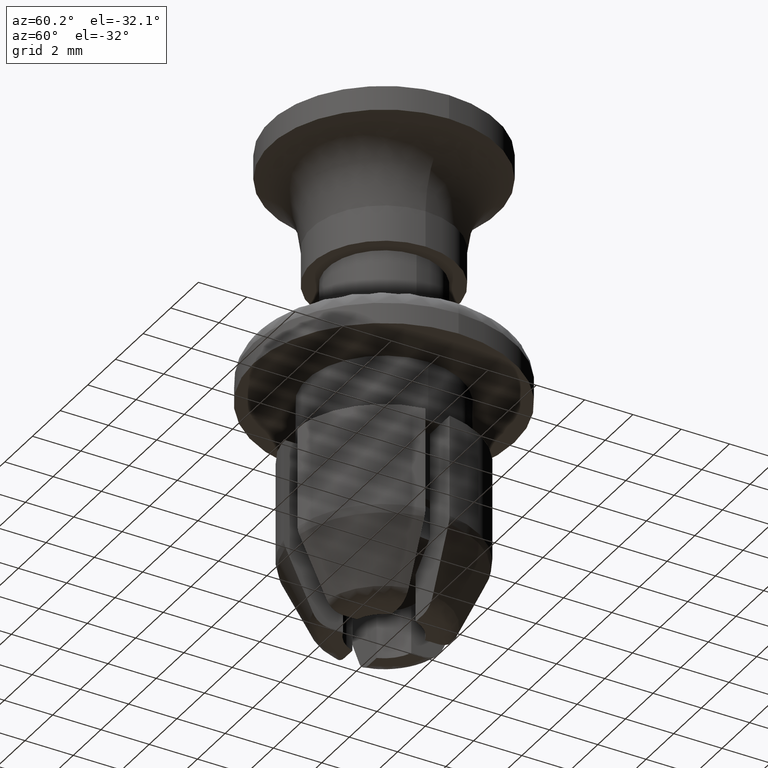
[diagram: clean part render]
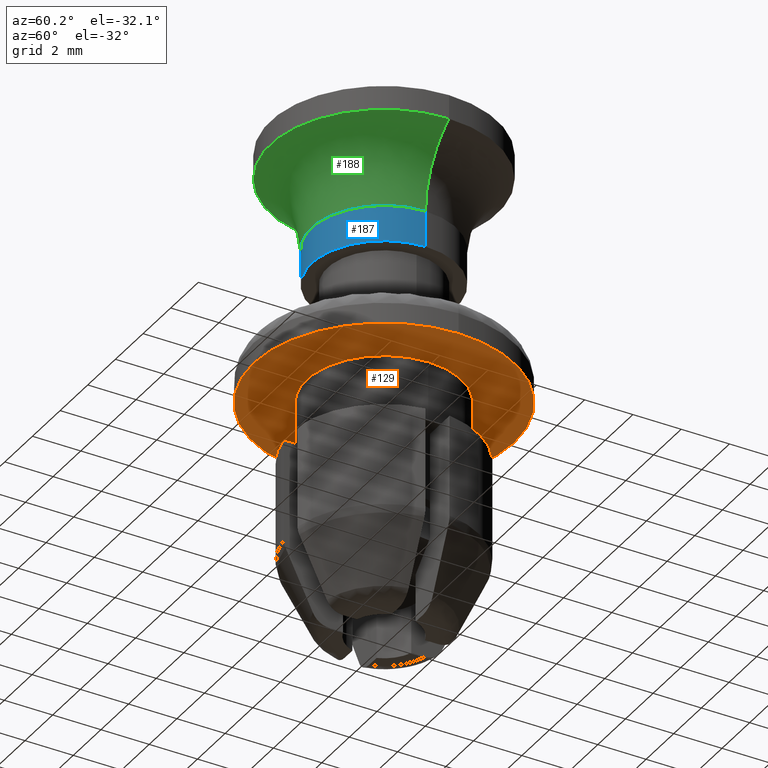
[diagram: same view with three faces highlighted in distinct colors, each labeled with its STEP entity id]
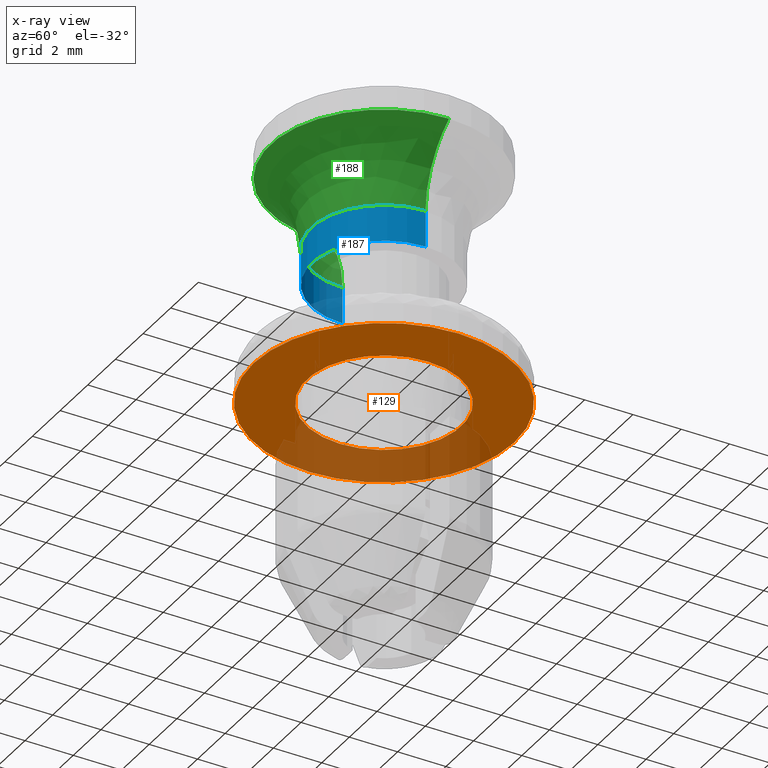
[diagram: x-ray of the same camera — body ghosted, the three highlighted faces saturated]
A machine part, auxiliary view with three faces highlighted in distinct colors.
The next image is the same camera in x-ray (body ghosted, the three faces saturated) — at least one of them is partly hidden behind the body in this view.
Their STEP definitions:

[orange] entity #129 — the highlighted planar face has unit normal (0, 0, -1).
#129=ADVANCED_FACE('',(#364,#365),#363,.T.);
#363=PLANE('',#1104);
#364=FACE_OUTER_BOUND('',#1105,.T.);
#365=FACE_BOUND('',#1106,.T.);
#1101=CARTESIAN_POINT('',(1.24200000000E+01,-1.12236892330E+01,-2.00000000000E+00));
#1102=DIRECTION('',(0.00000000000E+00,0.00000000000E+00,-1.00000000000E+00));
#1103=DIRECTION('',(-1.00000000000E+00,0.00000000000E+00,0.00000000000E+00));
#1104=AXIS2_PLACEMENT_3D('',#1101,#1102,#1103);
#1105=EDGE_LOOP('',(#1704,#1705));
#1106=EDGE_LOOP('',(#1706,#1707));
#1704=ORIENTED_EDGE('',*,*,#2085,.T.);
#1705=ORIENTED_EDGE('',*,*,#2086,.T.);
#1706=ORIENTED_EDGE('',*,*,#2087,.T.);
#1707=ORIENTED_EDGE('',*,*,#2088,.T.);
#2085=EDGE_CURVE('',#2745,#2746,#2747,.T.);
#2086=EDGE_CURVE('',#2746,#2745,#2753,.T.);
#2087=EDGE_CURVE('',#2759,#2760,#2761,.T.);
#2088=EDGE_CURVE('',#2760,#2759,#2767,.T.);
#2745=VERTEX_POINT('',#3879);
#2746=VERTEX_POINT('',#3880);
#2747=CIRCLE('',#3884,5.40000000000E+00);
#2753=CIRCLE('',#3888,5.40000000000E+00);
#2759=VERTEX_POINT('',#3889);
#2760=VERTEX_POINT('',#3890);
#2761=CIRCLE('',#3894,3.20000000000E+00);
#2767=CIRCLE('',#3898,3.20000000000E+00);
#3879=CARTESIAN_POINT('',(-5.40000000000E+00,0.00000000000E+00,-2.00000000000E+00));
#3880=CARTESIAN_POINT('',(5.40000000000E+00,2.96059473233E-16,-2.00000000000E+00));
#3881=CARTESIAN_POINT('',(0.00000000000E+00,0.00000000000E+00,-2.00000000000E+00));
#3882=DIRECTION('',(-0.00000000000E+00,0.00000000000E+00,-1.00000000000E+00));
#3883=DIRECTION('',(-1.00000000000E+00,-1.22460635382E-16,0.00000000000E+00));
#3884=AXIS2_PLACEMENT_3D('',#3881,#3882,#3883);
#3885=CARTESIAN_POINT('',(0.00000000000E+00,0.00000000000E+00,-2.00000000000E+00));
#3886=DIRECTION('',(-0.00000000000E+00,0.00000000000E+00,-1.00000000000E+00));
#3887=DIRECTION('',(-1.00000000000E+00,-1.22460635382E-16,0.00000000000E+00));
#3888=AXIS2_PLACEMENT_3D('',#3885,#3886,#3887);
#3889=CARTESIAN_POINT('',(-3.20000000000E+00,0.00000000000E+00,-2.00000000000E+00));
#3890=CARTESIAN_POINT('',(3.20000000000E+00,4.44089209850E-16,-2.00000000000E+00));
#3891=CARTESIAN_POINT('',(-1.97215226305E-31,0.00000000000E+00,-2.00000000000E+00));
#3892=DIRECTION('',(0.00000000000E+00,0.00000000000E+00,1.00000000000E+00));
#3893=DIRECTION('',(-1.00000000000E+00,-1.22460635382E-16,0.00000000000E+00));
#3894=AXIS2_PLACEMENT_3D('',#3891,#3892,#3893);
#3895=CARTESIAN_POINT('',(-1.97215226305E-31,0.00000000000E+00,-2.00000000000E+00));
#3896=DIRECTION('',(0.00000000000E+00,0.00000000000E+00,1.00000000000E+00));
#3897=DIRECTION('',(-1.00000000000E+00,-1.22460635382E-16,0.00000000000E+00));
#3898=AXIS2_PLACEMENT_3D('',#3895,#3896,#3897);

[blue] entity #187 — the highlighted cylindrical surface (partial cylindrical patch) has radius 3 mm, axis along (0, 0, 1).
#187=ADVANCED_FACE('',(#948),#947,.T.);
#947=CYLINDRICAL_SURFACE('',#1550,3.00000000000E+00);
#948=FACE_OUTER_BOUND('',#1551,.T.);
#1547=CARTESIAN_POINT('',(0.00000000000E+00,0.00000000000E+00,0.00000000000E+00));
#1548=DIRECTION('',(-0.00000000000E+00,-0.00000000000E+00,1.00000000000E+00));
#1549=DIRECTION('',(1.00000000000E+00,-0.00000000000E+00,-0.00000000000E+00));
#1550=AXIS2_PLACEMENT_3D('',#1547,#1548,#1549);
#1551=EDGE_LOOP('',(#1986,#1987,#1988,#1989));
#1986=ORIENTED_EDGE('',*,*,#2167,.F.);
#1987=ORIENTED_EDGE('',*,*,#2195,.T.);
#1988=ORIENTED_EDGE('',*,*,#2197,.T.);
#1989=ORIENTED_EDGE('',*,*,#2196,.F.);
#2167=EDGE_CURVE('',#3269,#3268,#3276,.T.);
#2195=EDGE_CURVE('',#3269,#3452,#3459,.T.);
#2196=EDGE_CURVE('',#3268,#3451,#3465,.T.);
#2197=EDGE_CURVE('',#3452,#3451,#3471,.T.);
#3268=VERTEX_POINT('',#4215);
#3269=VERTEX_POINT('',#4216);
#3276=CIRCLE('',#4224,3.00000000000E+00);
#3451=VERTEX_POINT('',#4316);
#3452=VERTEX_POINT('',#4317);
#3459=(BOUNDED_CURVE() B_SPLINE_CURVE(1,(#4322,#4323),.UNSPECIFIED.,.F.,.F.) B_SPLINE_CURVE_WITH_KNOTS((2,2),(8.33333134656E-02,9.16666653270E-01),.UNSPECIFIED.) CURVE() GEOMETRIC_REPRESENTATION_ITEM() RATIONAL_B_SPLINE_CURVE((1.00000000000E+00,1.00000000000E+00)) REPRESENTATION_ITEM('') );
#3465=(BOUNDED_CURVE() B_SPLINE_CURVE(1,(#4324,#4325),.UNSPECIFIED.,.F.,.F.) B_SPLINE_CURVE_WITH_KNOTS((2,2),(8.33333333333E-02,9.16666666667E-01),.UNSPECIFIED.) CURVE() GEOMETRIC_REPRESENTATION_ITEM() RATIONAL_B_SPLINE_CURVE((7.50000000000E-01,7.50000000000E-01)) REPRESENTATION_ITEM('') );
#3471=CIRCLE('',#4329,3.00000000000E+00);
#4215=CARTESIAN_POINT('',(-3.00000000000E+00,0.00000000000E+00,0.00000000000E+00));
#4216=CARTESIAN_POINT('',(3.00000000000E+00,-1.48029736617E-16,0.00000000000E+00));
#4221=CARTESIAN_POINT('',(0.00000000000E+00,0.00000000000E+00,0.00000000000E+00));
#4222=DIRECTION('',(-0.00000000000E+00,0.00000000000E+00,-1.00000000000E+00));
#4223=DIRECTION('',(-1.00000000000E+00,-1.22460635382E-16,0.00000000000E+00));
#4224=AXIS2_PLACEMENT_3D('',#4221,#4222,#4223);
#4316=CARTESIAN_POINT('',(-3.00000000000E+00,0.00000000000E+00,1.49800000000E+00));
#4317=CARTESIAN_POINT('',(3.00000000000E+00,-1.48029736617E-16,1.49800000000E+00));
#4322=CARTESIAN_POINT('',(3.00000000000E+00,0.00000000000E+00,-3.57142043439E-08));
#4323=CARTESIAN_POINT('',(3.00000000000E+00,0.00000000000E+00,1.49799997592E+00));
#4324=CARTESIAN_POINT('',(-3.00000000000E+00,-1.48029736617E-16,3.70074341542E-17));
#4325=CARTESIAN_POINT('',(-3.00000000000E+00,-1.48029736617E-16,1.49800000000E+00));
#4326=CARTESIAN_POINT('',(0.00000000000E+00,0.00000000000E+00,1.49800000000E+00));
#4327=DIRECTION('',(-0.00000000000E+00,0.00000000000E+00,-1.00000000000E+00));
#4328=DIRECTION('',(-1.00000000000E+00,-1.22460635382E-16,0.00000000000E+00));
#4329=AXIS2_PLACEMENT_3D('',#4326,#4327,#4328);

[green] entity #188 — the highlighted face is a freeform B-spline surface patch.
#188=ADVANCED_FACE('',(#958),#957,.F.);
#957=( BOUNDED_SURFACE() B_SPLINE_SURFACE( 2,2,((#1552,#1553,#1554,#1555,#1556),(#1557,#1558,#1559,#1560,#1561),(#1562,#1563,#1564,#1565,#1566),(#1567,#1568,#1569,#1570,#1571),(#1572,#1573,#1574,#1575,#1576)), .UNSPECIFIED.,.F.,.F.,.F.) B_SPLINE_SURFACE_WITH_KNOTS((3,2,3),(3,2,3),(0.00000000000E+00,5.00000000000E-01,1.00000000000E+00),(0.00000000000E+00,5.00000000000E-01,1.00000000000E+00), .UNSPECIFIED. ) GEOMETRIC_REPRESENTATION_ITEM() RATIONAL_B_SPLINE_SURFACE(((1.00000000000E+00,7.07106781187E-01,1.00000000000E+00,7.07106781187E-01,1.00000000000E+00),(7.07106781187E-01,5.00000000000E-01,7.07106781187E-01,5.00000000000E-01,7.07106781187E-01),(1.00000000000E+00,7.07106781187E-01,1.00000000000E+00,7.07106781187E-01,1.00000000000E+00),(7.07106781187E-01,5.00000000000E-01,7.07106781187E-01,5.00000000000E-01,7.07106781187E-01),(1.00000000000E+00,7.07106781187E-01,1.00000000000E+00,7.07106781187E-01,1.00000000000E+00))) REPRESENTATION_ITEM('') SURFACE() );
#958=FACE_OUTER_BOUND('',#1577,.T.);
#1552=CARTESIAN_POINT('',(3.00000000000E+00,-3.67381906147E-16,1.49800000000E+00));
#1553=CARTESIAN_POINT('',(3.00000000000E+00,-3.67381906147E-16,4.99800000000E+00));
#1554=CARTESIAN_POINT('',(6.50000000000E+00,-7.95994129985E-16,4.99800000000E+00));
#1555=CARTESIAN_POINT('',(1.00000000000E+01,-1.22460635382E-15,4.99800000000E+00));
#1556=CARTESIAN_POINT('',(1.00000000000E+01,-1.22460635382E-15,1.49800000000E+00));
#1557=CARTESIAN_POINT('',(3.00000000000E+00,-3.00000000000E+00,1.49800000000E+00));
#1558=CARTESIAN_POINT('',(3.00000000000E+00,-3.00000000000E+00,4.99800000000E+00));
#1559=CARTESIAN_POINT('',(6.50000000000E+00,-6.50000000000E+00,4.99800000000E+00));
#1560=CARTESIAN_POINT('',(1.00000000000E+01,-1.00000000000E+01,4.99800000000E+00));
#1561=CARTESIAN_POINT('',(1.00000000000E+01,-1.00000000000E+01,1.49800000000E+00));
#1562=CARTESIAN_POINT('',(-1.83684886275E-16,-3.00000000000E+00,1.49800000000E+00));
#1563=CARTESIAN_POINT('',(-1.83684886275E-16,-3.00000000000E+00,4.99800000000E+00));
#1564=CARTESIAN_POINT('',(-3.97983920262E-16,-6.50000000000E+00,4.99800000000E+00));
#1565=CARTESIAN_POINT('',(-6.12282954249E-16,-1.00000000000E+01,4.99800000000E+00));
#1566=CARTESIAN_POINT('',(-6.12282954249E-16,-1.00000000000E+01,1.49800000000E+00));
#1567=CARTESIAN_POINT('',(-3.00000000000E+00,-3.00000000000E+00,1.49800000000E+00));
#1568=CARTESIAN_POINT('',(-3.00000000000E+00,-3.00000000000E+00,4.99800000000E+00));
#1569=CARTESIAN_POINT('',(-6.50000000000E+00,-6.50000000000E+00,4.99800000000E+00));
#1570=CARTESIAN_POINT('',(-1.00000000000E+01,-1.00000000000E+01,4.99800000000E+00));
#1571=CARTESIAN_POINT('',(-1.00000000000E+01,-1.00000000000E+01,1.49800000000E+00));
#1572=CARTESIAN_POINT('',(-3.00000000000E+00,-1.21335974928E-20,1.49800000000E+00));
#1573=CARTESIAN_POINT('',(-3.00000000000E+00,-1.21335974928E-20,4.99800000000E+00));
#1574=CARTESIAN_POINT('',(-6.50000000000E+00,-2.62894612344E-20,4.99800000000E+00));
#1575=CARTESIAN_POINT('',(-1.00000000000E+01,-4.04453249759E-20,4.99800000000E+00));
#1576=CARTESIAN_POINT('',(-1.00000000000E+01,-4.04453249760E-20,1.49800000000E+00));
#1577=EDGE_LOOP('',(#1990,#1991,#1992,#1993));
#1990=ORIENTED_EDGE('',*,*,#2197,.F.);
#1991=ORIENTED_EDGE('',*,*,#2198,.T.);
#1992=ORIENTED_EDGE('',*,*,#2174,.T.);
#1993=ORIENTED_EDGE('',*,*,#2199,.F.);
#2174=EDGE_CURVE('',#3304,#3311,#3324,.T.);
#2197=EDGE_CURVE('',#3452,#3451,#3471,.T.);
#2198=EDGE_CURVE('',#3452,#3304,#3477,.T.);
#2199=EDGE_CURVE('',#3451,#3311,#3483,.T.);
#3304=VERTEX_POINT('',#4241);
#3311=VERTEX_POINT('',#4244);
#3324=CIRCLE('',#4254,4.70000000000E+00);
#3451=VERTEX_POINT('',#4316);
#3452=VERTEX_POINT('',#4317);
#3471=CIRCLE('',#4329,3.00000000000E+00);
#3477=(BOUNDED_CURVE() B_SPLINE_CURVE(2,(#4330,#4331,#4332),.UNSPECIFIED.,.F.,.F.) B_SPLINE_CURVE_WITH_KNOTS((3,3),(0.00000000000E+00,3.24375852943E-01),.UNSPECIFIED.) CURVE() GEOMETRIC_REPRESENTATION_ITEM() RATIONAL_B_SPLINE_CURVE((1.00000000000E+00,8.09985024652E-01,8.66515128106E-01)) REPRESENTATION_ITEM('') );
#3483=(BOUNDED_CURVE() B_SPLINE_CURVE(2,(#4333,#4334,#4335),.UNSPECIFIED.,.F.,.F.) B_SPLINE_CURVE_WITH_KNOTS((3,3),(0.00000000000E+00,3.24375811853E-01),.UNSPECIFIED.) CURVE() GEOMETRIC_REPRESENTATION_ITEM() RATIONAL_B_SPLINE_CURVE((7.50000000000E-01,6.07488786542E-01,6.49886335338E-01)) REPRESENTATION_ITEM('') );
#4241=CARTESIAN_POINT('',(4.70000000000E+00,0.00000000000E+00,4.49966620396E+00));
#4244=CARTESIAN_POINT('',(-4.70000000000E+00,0.00000000000E+00,4.49966620396E+00));
#4251=CARTESIAN_POINT('',(0.00000000000E+00,0.00000000000E+00,4.49966620396E+00));
#4252=DIRECTION('',(-0.00000000000E+00,0.00000000000E+00,-1.00000000000E+00));
#4253=DIRECTION('',(-1.00000000000E+00,-1.22460635382E-16,0.00000000000E+00));
#4254=AXIS2_PLACEMENT_3D('',#4251,#4252,#4253);
#4316=CARTESIAN_POINT('',(-3.00000000000E+00,0.00000000000E+00,1.49800000000E+00));
#4317=CARTESIAN_POINT('',(3.00000000000E+00,-1.48029736617E-16,1.49800000000E+00));
#4326=CARTESIAN_POINT('',(0.00000000000E+00,0.00000000000E+00,1.49800000000E+00));
#4327=DIRECTION('',(-0.00000000000E+00,0.00000000000E+00,-1.00000000000E+00));
#4328=DIRECTION('',(-1.00000000000E+00,-1.22460635382E-16,0.00000000000E+00));
#4329=AXIS2_PLACEMENT_3D('',#4326,#4327,#4328);
#4330=CARTESIAN_POINT('',(3.00000000000E+00,-3.67381906147E-16,1.49800000000E+00));
#4331=CARTESIAN_POINT('',(3.00000000000E+00,-3.67381906147E-16,3.48023239692E+00));
#4332=CARTESIAN_POINT('',(4.69999999750E+00,-5.75564985990E-16,4.49966620246E+00));
#4333=CARTESIAN_POINT('',(-3.00000000000E+00,4.44089209850E-16,1.49800000000E+00));
#4334=CARTESIAN_POINT('',(-3.00000000000E+00,5.48268403905E-16,3.48023208692E+00));
#4335=CARTESIAN_POINT('',(-4.69999959491E+00,7.28200668964E-16,4.49966596104E+00));